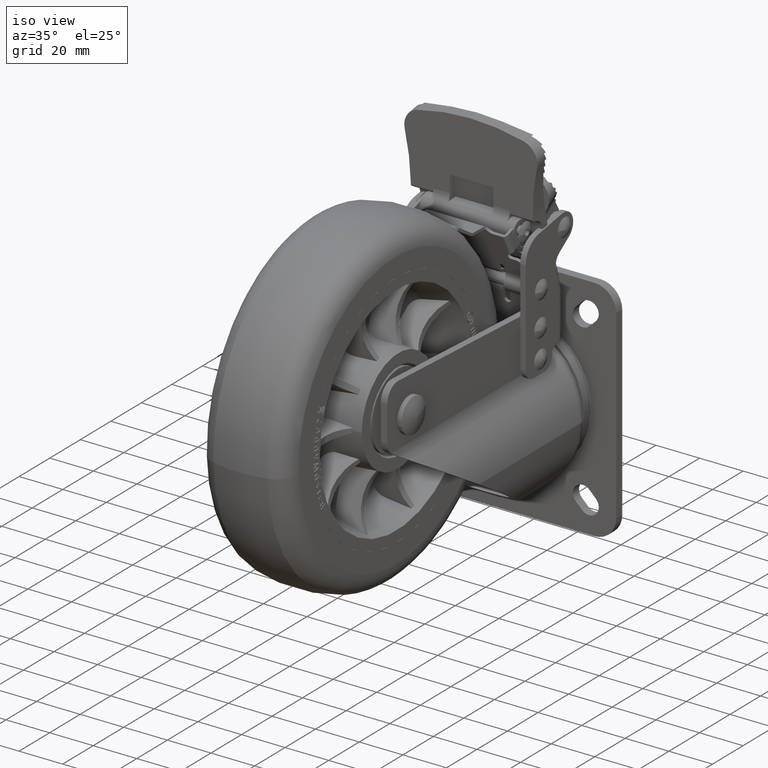
[diagram: clean part render]
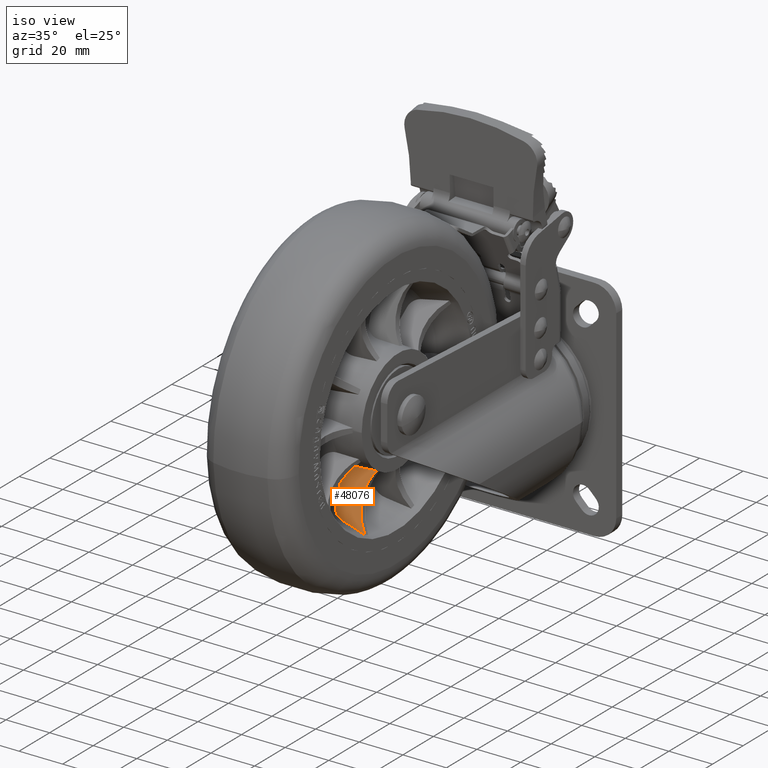
[diagram: same view with one face highlighted and labeled with its STEP entity id]
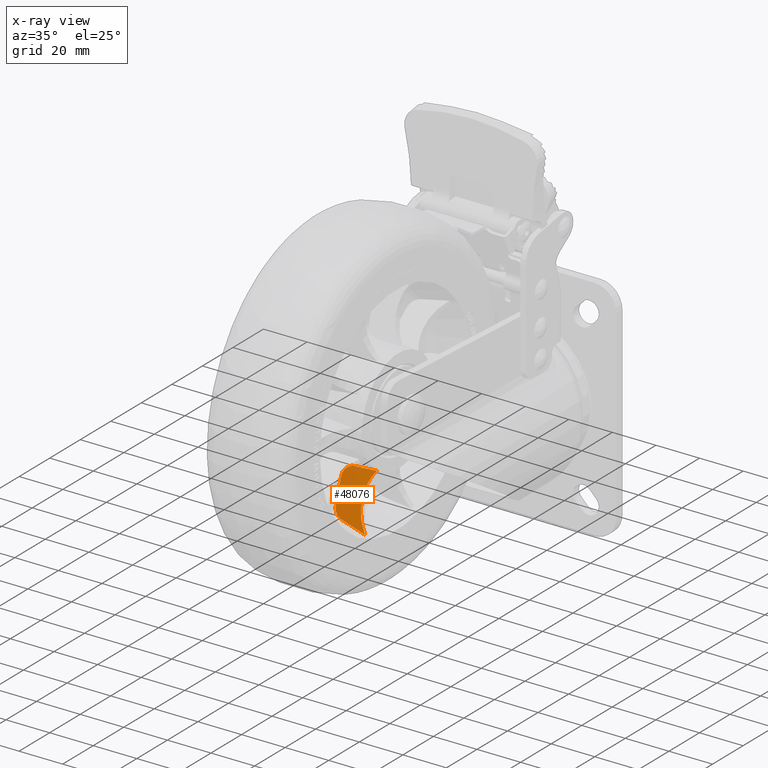
[diagram: x-ray of the same camera — body ghosted, the highlighted face saturated]
A machine part, iso view. The second image highlights one B-rep face of the part: STEP entity #48076.
The next image is the same camera in x-ray: the body ghosted, the highlighted face saturated — about 0% of this face is hidden behind the body in this view.
In plain terms, the highlighted planar face has unit normal (-0.1219, 0.944, -0.3067).
Its self-contained STEP definition (entity closure, byte-faithful):
#657 = CARTESIAN_POINT ( 'NONE',  ( 16.99067067882805300, -114.8258795705893900, -7.214388475254997600 ) ) ;
#1011 = CARTESIAN_POINT ( 'NONE',  ( 7.408399885645892800, -108.4011210752824800, 16.36639664990302000 ) ) ;
#1422 = DIRECTION ( 'NONE',  ( -0.1218693434051473700, 0.9439674852421556800, -0.3067136285586263800 ) ) ;
#1617 = CARTESIAN_POINT ( 'NONE',  ( 4.152903655780162900, -109.3176637899039200, 14.83910444691882400 ) ) ;
#1743 = VERTEX_POINT ( 'NONE', #68740 ) ;
#2035 = EDGE_CURVE ( 'NONE', #26719, #24845, #62267, .T. ) ;
#3641 = CARTESIAN_POINT ( 'NONE',  ( 4.696229465879205200, -114.9397294727552700, -2.679719185048348600 ) ) ;
#4338 = VERTEX_POINT ( 'NONE', #59886 ) ;
#8373 = CARTESIAN_POINT ( 'NONE',  ( 7.722649901891819500, -108.3600571154033800, 16.36791467764237900 ) ) ;
#8669 = CARTESIAN_POINT ( 'NONE',  ( 3.614603009995924300, -109.6226935313364400, 14.11420737360429800 ) ) ;
#10739 = CARTESIAN_POINT ( 'NONE',  ( 5.331977654197943100, -115.0137399674405300, -3.160107733556546200 ) ) ;
#13266 = DIRECTION ( 'NONE',  ( 5.676550095651303200E-017, -0.3090169943749516700, -0.9510565162951523100 ) ) ;
#13686 = EDGE_CURVE ( 'NONE', #32637, #4338, #23630, .T. ) ;
#15761 = CARTESIAN_POINT ( 'NONE',  ( 3.237894413112011100, -109.9344020747152800, 13.30454820837077000 ) ) ;
#17549 = CARTESIAN_POINT ( 'NONE',  ( 3.000000000004398700, -114.1354354435651600, 0.4696217423172602300 ) ) ;
#17854 = CARTESIAN_POINT ( 'NONE',  ( 6.038182678328039900, -115.0470948206413900, -3.543366345341050200 ) ) ;
#18892 = CARTESIAN_POINT ( 'NONE',  ( 10.01989558998732100, -114.9733977026687500, -4.898640504506935200 ) ) ;
#21632 = CARTESIAN_POINT ( 'NONE',  ( 13.94617231015976900, -107.5442370776980400, 16.40590125129017800 ) ) ;
#21933 = CARTESIAN_POINT ( 'NONE',  ( 11.70019461711579800, -113.0524145719981800, 0.3458890048290749200 ) ) ;
#22573 = CARTESIAN_POINT ( 'NONE',  ( 7.098706312059495500, -108.4507151483590700, 16.33681517998946500 ) ) ;
#22890 = CARTESIAN_POINT ( 'NONE',  ( 3.029373457522559000, -110.2463850927400700, 12.42721675660662100 ) ) ;
#23553 = EDGE_CURVE ( 'NONE', #27924, #26719, #35911, .T. ) ;
#23630 = B_SPLINE_CURVE_WITH_KNOTS ( 'NONE', 3,
 ( #8373, #1011, #22573, #71452, #29588, #78545, #36657, #85623, #43734, #1617, #50708, #8669, #57712, #15761, #64740, #22890, #71751, #29885 ),
 .UNSPECIFIED., .F., .F.,
 ( 4, 2, 2, 2, 2, 2, 2, 2, 4 ),
 ( 0.0002859657718570402500, 0.001230925044349654900, 0.002175884316842269300, 0.003120843589334883700, 0.004065802861827501200, 0.005010762134320122100, 0.005955721406812743000, 0.006900680679305363900, 0.007845639951797985700 ),
 .UNSPECIFIED. ) ;
#24558 = ORIENTED_EDGE ( 'NONE', *, *, #59611, .T. ) ;
#24587 = CARTESIAN_POINT ( 'NONE',  ( 3.084952434804114900, -114.2882582415033600, -0.03447339826615428100 ) ) ;
#24845 = VERTEX_POINT ( 'NONE', #64596 ) ;
#24895 = CARTESIAN_POINT ( 'NONE',  ( 6.537478290536673100, -115.0438033857121500, -3.731626062208976100 ) ) ;
#25912 = CARTESIAN_POINT ( 'NONE',  ( 16.99067067882805300, -114.8258795705893900, -7.214388475254997600 ) ) ;
#26719 = VERTEX_POINT ( 'NONE', #49560 ) ;
#27924 = VERTEX_POINT ( 'NONE', #56927 ) ;
#28634 = CARTESIAN_POINT ( 'NONE',  ( 17.01546444144633700, -107.1380162262059300, 16.43657044235829200 ) ) ;
#28933 = CARTESIAN_POINT ( 'NONE',  ( 17.00000000000436600, -107.1468006598122700, 16.41567936423398800 ) ) ;
#29588 = CARTESIAN_POINT ( 'NONE',  ( 6.185759190355295100, -108.6342643957586300, 16.13465834890397600 ) ) ;
#29885 = CARTESIAN_POINT ( 'NONE',  ( 3.000000000004400000, -110.4443405276528700, 11.82964379917166700 ) ) ;
#31651 = CARTESIAN_POINT ( 'NONE',  ( 3.441076305298089700, -114.5596822750859900, -1.011332646716453800 ) ) ;
#32637 = VERTEX_POINT ( 'NONE', #86796 ) ;
#35025 = EDGE_CURVE ( 'NONE', #4338, #1743, #73451, .T. ) ;
#35730 = CARTESIAN_POINT ( 'NONE',  ( 10.84811940384244400, -107.9516429623524700, 16.38301268609735900 ) ) ;
#35911 =( BOUNDED_CURVE ( )  B_SPLINE_CURVE ( 3, ( #657, #21933, #63802, #28933 ),
 .UNSPECIFIED., .F., .F. ) 
 B_SPLINE_CURVE_WITH_KNOTS ( ( 4, 4 ),
 ( 2.541906755985004800, 3.742029507851129200 ),
 .UNSPECIFIED. ) 
 CURVE ( )  GEOMETRIC_REPRESENTATION_ITEM ( )  RATIONAL_B_SPLINE_CURVE ( ( 1.000000000000000000, 0.8835339719310180100, 0.8835339719310180100, 1.000000000000000000 ) ) 
 REPRESENTATION_ITEM ( '' )  );
#36578 = ORIENTED_EDGE ( 'NONE', *, *, #38595, .T. ) ;
#36657 = CARTESIAN_POINT ( 'NONE',  ( 5.342485312339966300, -108.8609082285349700, 15.77218611195274500 ) ) ;
#38595 = EDGE_CURVE ( 'NONE', #43935, #27924, #64591, .T. ) ;
#38715 = CARTESIAN_POINT ( 'NONE',  ( 3.824853343315045300, -114.7304912513449700, -1.689518276714702300 ) ) ;
#39870 = DIRECTION ( 'NONE',  ( 0.5636482632725728900, 0.3201752074031616300, 0.7614384229037530800 ) ) ;
#41119 = B_SPLINE_CURVE_WITH_KNOTS ( 'NONE', 3,
 ( #73201, #17549, #24587, #73490, #31651, #80622, #38715, #87654, #45747, #3641, #52739, #10739, #59767, #17854, #66791, #24895 ),
 .UNSPECIFIED., .F., .F.,
 ( 4, 2, 2, 2, 2, 2, 2, 4 ),
 ( 0.006643183694769421200, 0.008238488318176834200, 0.009036140629880539900, 0.009833792941584245500, 0.01063144525328795100, 0.01142909756499165700, 0.01222674987669536400, 0.01302440218839907000 ),
 .UNSPECIFIED. ) ;
#42275 =( BOUNDED_CURVE ( )  B_SPLINE_CURVE ( 3, ( #28634, #21632, #35730, #84668 ),
 .UNSPECIFIED., .F., .F. ) 
 B_SPLINE_CURVE_WITH_KNOTS ( ( 4, 4 ),
 ( 4.281002125667472800, 4.322662392715626500 ),
 .UNSPECIFIED. ) 
 CURVE ( )  GEOMETRIC_REPRESENTATION_ITEM ( )  RATIONAL_B_SPLINE_CURVE ( ( 1.000000000000000000, 0.9998553737419474400, 0.9998553737419474400, 1.000000000000000000 ) ) 
 REPRESENTATION_ITEM ( '' )  );
#42280 = ORIENTED_EDGE ( 'NONE', *, *, #23553, .T. ) ;
#42721 = CARTESIAN_POINT ( 'NONE',  ( 26.99682267420657000, -101.4681975634385200, 29.92049324744816400 ) ) ;
#43536 = CARTESIAN_POINT ( 'NONE',  ( 13.15195513324348700, -100.1110780093005700, 39.59838615162213000 ) ) ;
#43734 = CARTESIAN_POINT ( 'NONE',  ( 4.586158948937524300, -109.1266262323970200, 15.25490828727010000 ) ) ;
#43935 = VERTEX_POINT ( 'NONE', #53712 ) ;
#45747 = CARTESIAN_POINT ( 'NONE',  ( 4.318334506146603900, -114.8688492256952100, -2.311419739991889000 ) ) ;
#48076 = ADVANCED_FACE ( 'NONE', ( #86022 ), #71259, .F. ) ;
#48397 = ORIENTED_EDGE ( 'NONE', *, *, #2035, .T. ) ;
#49560 = CARTESIAN_POINT ( 'NONE',  ( 17.00000000000436600, -107.1468006598122700, 16.41567936423398800 ) ) ;
#50509 = DIRECTION ( 'NONE',  ( 0.0000000000000000000, 0.3090169943749516700, 0.9510565162951523100 ) ) ;
#50708 = CARTESIAN_POINT ( 'NONE',  ( 3.958244573748409300, -109.4168196528179200, 14.61127976115169800 ) ) ;
#52739 = CARTESIAN_POINT ( 'NONE',  ( 4.898891169858402800, -114.9687390025039500, -2.849526773602428800 ) ) ;
#53712 = CARTESIAN_POINT ( 'NONE',  ( 6.537478290536673100, -115.0438033857121500, -3.731626062208976100 ) ) ;
#54289 = ORIENTED_EDGE ( 'NONE', *, *, #60007, .T. ) ;
#54885 = VECTOR ( 'NONE', #13266, 999.9999999999998900 ) ;
#56927 = CARTESIAN_POINT ( 'NONE',  ( 16.99067067882805300, -114.8258795705893900, -7.214388475254997600 ) ) ;
#57712 = CARTESIAN_POINT ( 'NONE',  ( 3.470630779081504100, -109.7264820794674400, 13.85198487666477600 ) ) ;
#59583 = ORIENTED_EDGE ( 'NONE', *, *, #13686, .T. ) ;
#59611 = EDGE_CURVE ( 'NONE', #1743, #43935, #41119, .T. ) ;
#59767 = CARTESIAN_POINT ( 'NONE',  ( 5.563189310597603100, -115.0296192616694000, -3.300848627257804600 ) ) ;
#59886 = CARTESIAN_POINT ( 'NONE',  ( 3.000000000004400000, -110.4443405276528700, 11.82964379917166700 ) ) ;
#60007 = EDGE_CURVE ( 'NONE', #24845, #32637, #42275, .T. ) ;
#60782 = CARTESIAN_POINT ( 'NONE',  ( 6.537478290536673100, -115.0438033857121500, -3.731626062208976100 ) ) ;
#62267 = LINE ( 'NONE', #42721, #76489 ) ;
#62288 = CARTESIAN_POINT ( 'NONE',  ( 3.000000000004397400, -98.45761722965585200, 48.72098475809161000 ) ) ;
#63802 = CARTESIAN_POINT ( 'NONE',  ( 11.70371431621535900, -110.1553069886138600, 9.260870805262477700 ) ) ;
#63897 = ORIENTED_EDGE ( 'NONE', *, *, #35025, .T. ) ;
#64591 = B_SPLINE_CURVE_WITH_KNOTS ( 'NONE', 3,
 ( #60782, #18892, #67795, #25912 ),
 .UNSPECIFIED., .F., .F.,
 ( 4, 4 ),
 ( 2.109697201786925600E-007, 0.01102047988786048600 ),
 .UNSPECIFIED. ) ;
#64596 = CARTESIAN_POINT ( 'NONE',  ( 17.01546444144633700, -107.1380162262059300, 16.43657044235829200 ) ) ;
#64740 = CARTESIAN_POINT ( 'NONE',  ( 3.148282820842111600, -110.0397265721481500, 13.01599893365940400 ) ) ;
#66791 = CARTESIAN_POINT ( 'NONE',  ( 6.283753437633170500, -115.0489330614625300, -3.646598754380324900 ) ) ;
#67795 = CARTESIAN_POINT ( 'NONE',  ( 13.50442196832985600, -114.9006108862959500, -6.059164591646654300 ) ) ;
#68740 = CARTESIAN_POINT ( 'NONE',  ( 3.000000000004400500, -113.9690086605508800, 0.9818307125453729100 ) ) ;
#71259 = PLANE ( 'NONE',  #72161 ) ;
#71452 = CARTESIAN_POINT ( 'NONE',  ( 6.488418264477921600, -108.5669377126556600, 16.22161026305532500 ) ) ;
#71751 = CARTESIAN_POINT ( 'NONE',  ( 3.000000000004395600, -110.3467903923221800, 12.12987224472800600 ) ) ;
#72161 = AXIS2_PLACEMENT_3D ( 'NONE', #43536, #1422, #50509 ) ;
#73201 = CARTESIAN_POINT ( 'NONE',  ( 3.000000000004400500, -113.9690086605508800, 0.9818307125453729100 ) ) ;
#73451 = LINE ( 'NONE', #62288, #54885 ) ;
#73490 = CARTESIAN_POINT ( 'NONE',  ( 3.336784603382910100, -114.4952611155156600, -0.7716255245501345600 ) ) ;
#75167 = EDGE_LOOP ( 'NONE', ( #24558, #36578, #42280, #48397, #54289, #59583, #63897 ) ) ;
#76489 = VECTOR ( 'NONE', #39870, 1000.000000000000000 ) ;
#78545 = CARTESIAN_POINT ( 'NONE',  ( 5.614228177795616200, -108.7810447198404500, 15.91000662901131700 ) ) ;
#80622 = CARTESIAN_POINT ( 'NONE',  ( 3.684852252658723100, -114.6770769355783800, -1.469497997076135300 ) ) ;
#84668 = CARTESIAN_POINT ( 'NONE',  ( 7.722649901891819500, -108.3600571154033800, 16.36791467764237900 ) ) ;
#85623 = CARTESIAN_POINT ( 'NONE',  ( 4.827600235772227000, -109.0338383188976900, 15.44454603679783100 ) ) ;
#86022 = FACE_OUTER_BOUND ( 'NONE', #75167, .T. ) ;
#86796 = CARTESIAN_POINT ( 'NONE',  ( 7.722649901891819500, -108.3600571154033800, 16.36791467764237900 ) ) ;
#87654 = CARTESIAN_POINT ( 'NONE',  ( 4.141788290822830700, -114.8265477811555300, -2.111080551103753100 ) ) ;